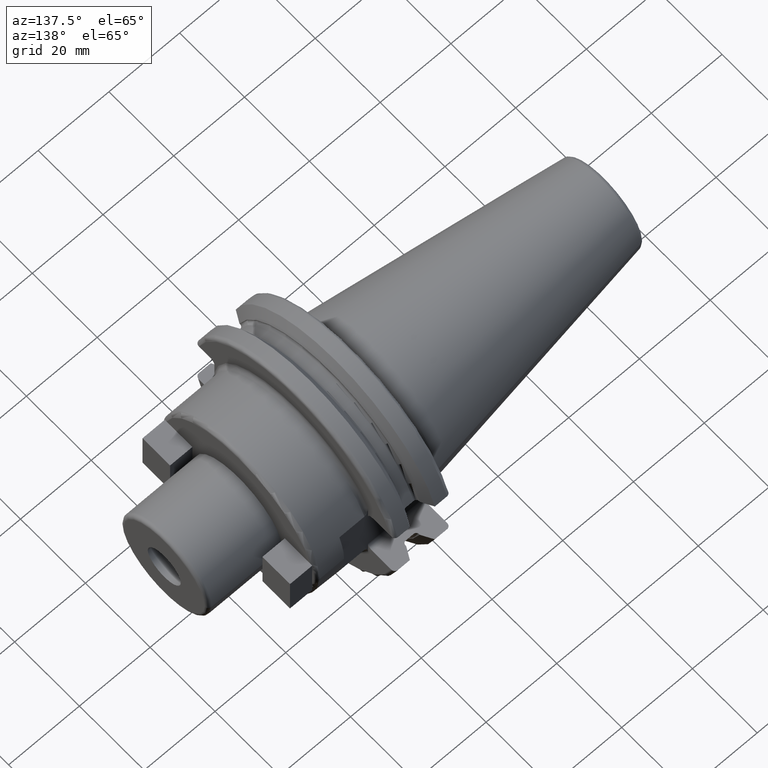
[diagram: clean part render]
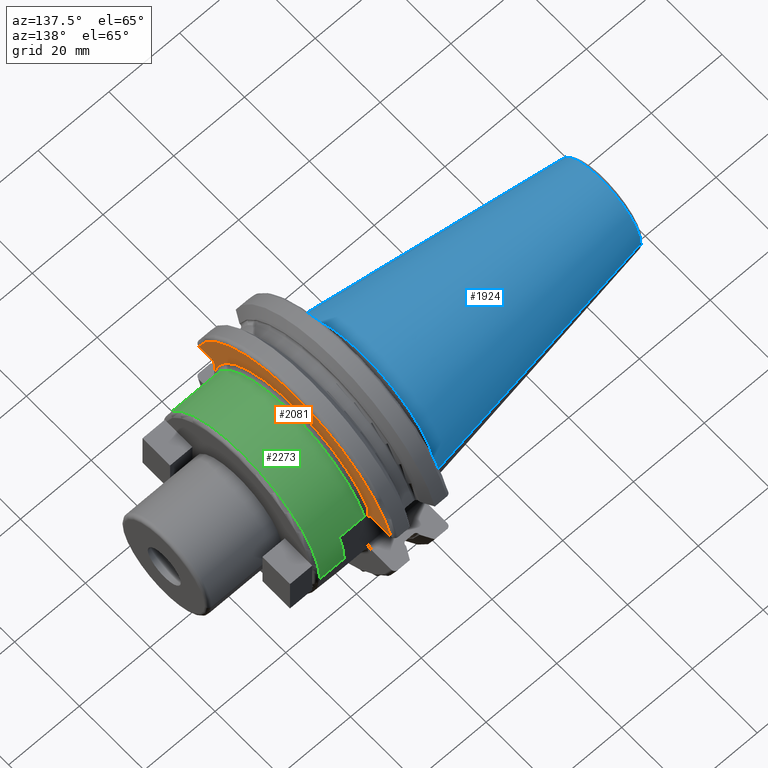
[diagram: same view with three faces highlighted in distinct colors, each labeled with its STEP entity id]
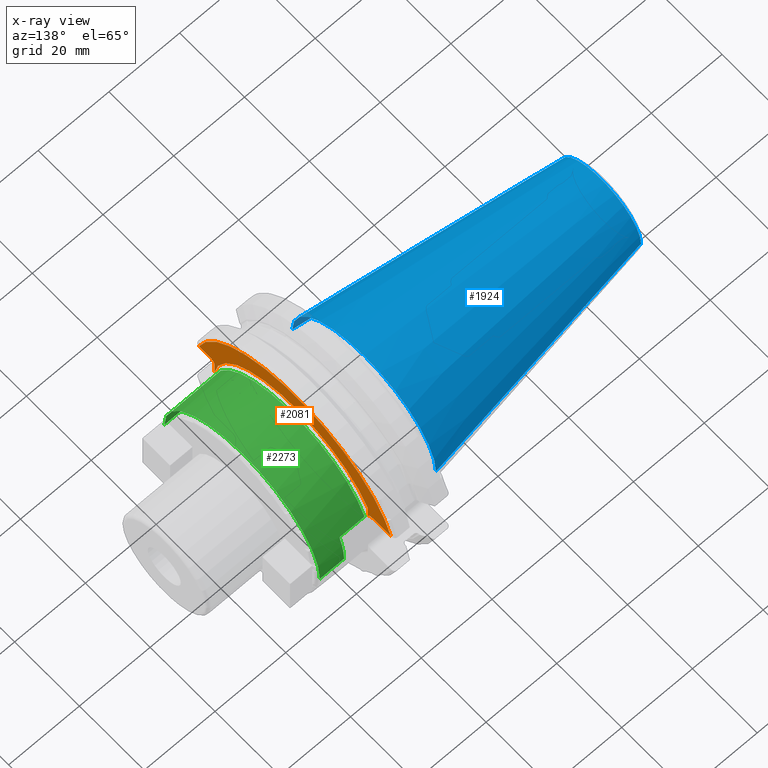
[diagram: x-ray of the same camera — body ghosted, the three highlighted faces saturated]
A machine part, auxiliary view with three faces highlighted in distinct colors.
The next image is the same camera in x-ray (body ghosted, the three faces saturated) — at least one of them is partly hidden behind the body in this view.
Their STEP definitions:

[orange] entity #2081 — the highlighted planar face has unit normal (1, 0, 0).
#134=DIRECTION('',(0.E0,0.E0,1.E0));
#135=VECTOR('',#134,4.043400761576E0);
#136=CARTESIAN_POINT('',(1.905E1,2.255E1,6.75E0));
#137=LINE('',#136,#135);
#147=CARTESIAN_POINT('',(1.905E1,2.39E1,6.75E0));
#148=DIRECTION('',(1.E0,0.E0,0.E0));
#149=DIRECTION('',(0.E0,0.E0,1.E0));
#150=AXIS2_PLACEMENT_3D('',#147,#148,#149);
#152=CARTESIAN_POINT('',(1.905E1,0.E0,0.E0));
#153=DIRECTION('',(1.E0,0.E0,0.E0));
#154=DIRECTION('',(0.E0,9.02E-1,4.317360304631E-1));
#155=AXIS2_PLACEMENT_3D('',#152,#153,#154);
#157=DIRECTION('',(0.E0,-2.203321930140E-6,9.999999999976E-1));
#158=VECTOR('',#157,4.018528073003E0);
#159=CARTESIAN_POINT('',(1.905E1,-2.484999114589E1,2.731471927007E0));
#160=LINE('',#159,#158);
#161=DIRECTION('',(0.E0,1.E0,0.E0));
#162=VECTOR('',#161,3.476950757280E0);
#163=CARTESIAN_POINT('',(1.905E1,-2.967695075728E1,8.1E0));
#164=LINE('',#163,#162);
#165=DIRECTION('',(0.E0,-1.E0,0.E0));
#166=VECTOR('',#165,5.776950757280E0);
#167=CARTESIAN_POINT('',(1.905E1,2.967695075728E1,8.1E0));
#168=LINE('',#167,#166);
#208=CARTESIAN_POINT('',(1.905E1,2.967695075728E1,8.1E0));
#219=CARTESIAN_POINT('',(1.905E1,0.E0,0.E0));
#220=DIRECTION('',(1.E0,0.E0,0.E0));
#221=DIRECTION('',(0.E0,9.647119303464E-1,2.633075985372E-1));
#222=AXIS2_PLACEMENT_3D('',#219,#220,#221);
#233=CARTESIAN_POINT('',(1.905E1,-2.967695075728E1,8.1E0));
#239=CARTESIAN_POINT('',(1.905E1,-2.62E1,6.75E0));
#240=DIRECTION('',(-1.E0,0.E0,0.E0));
#241=DIRECTION('',(0.E0,0.E0,1.E0));
#242=AXIS2_PLACEMENT_3D('',#239,#240,#241);
#1689=VERTEX_POINT('',#208);
#1690=VERTEX_POINT('',#233);
#1717=CARTESIAN_POINT('',(1.905E1,2.39E1,8.1E0));
#1719=VERTEX_POINT('',#1717);
#1729=CARTESIAN_POINT('',(1.905E1,-2.62E1,8.1E0));
#1731=VERTEX_POINT('',#1729);
#1733=CARTESIAN_POINT('',(1.905E1,-2.485E1,6.75E0));
#1735=VERTEX_POINT('',#1733);
#1772=CARTESIAN_POINT('',(1.905E1,-2.484999114589E1,2.731471927007E0));
#1773=VERTEX_POINT('',#1772);
#1854=CARTESIAN_POINT('',(1.905E1,2.255E1,6.75E0));
#1855=CARTESIAN_POINT('',(1.905E1,2.255E1,1.079340076158E1));
#1856=VERTEX_POINT('',#1854);
#1857=VERTEX_POINT('',#1855);
#2059=CARTESIAN_POINT('',(1.905E1,0.E0,0.E0));
#2060=DIRECTION('',(1.E0,0.E0,0.E0));
#2061=DIRECTION('',(0.E0,-1.E0,0.E0));
#2062=AXIS2_PLACEMENT_3D('',#2059,#2060,#2061);
#2063=PLANE('',#2062);
#2065=ORIENTED_EDGE('',*,*,#2064,.T.);
#2066=ORIENTED_EDGE('',*,*,#2030,.T.);
#2068=ORIENTED_EDGE('',*,*,#2067,.T.);
#2070=ORIENTED_EDGE('',*,*,#2069,.T.);
#2072=ORIENTED_EDGE('',*,*,#2071,.F.);
#2074=ORIENTED_EDGE('',*,*,#2073,.F.);
#2076=ORIENTED_EDGE('',*,*,#2075,.F.);
#2078=ORIENTED_EDGE('',*,*,#2077,.T.);
#2079=EDGE_LOOP('',(#2065,#2066,#2068,#2070,#2072,#2074,#2076,#2078));
#2080=FACE_OUTER_BOUND('',#2079,.F.);
#2081=ADVANCED_FACE('',(#2080),#2063,.T.);
#151=CIRCLE('',#150,1.35E0);
#156=CIRCLE('',#155,2.5E1);
#223=CIRCLE('',#222,3.07625E1);
#243=CIRCLE('',#242,1.35E0);
#2030=EDGE_CURVE('',#1856,#1857,#137,.T.);
#2064=EDGE_CURVE('',#1719,#1856,#151,.T.);
#2067=EDGE_CURVE('',#1857,#1773,#156,.T.);
#2069=EDGE_CURVE('',#1773,#1735,#160,.T.);
#2071=EDGE_CURVE('',#1731,#1735,#243,.T.);
#2073=EDGE_CURVE('',#1690,#1731,#164,.T.);
#2075=EDGE_CURVE('',#1689,#1690,#223,.T.);
#2077=EDGE_CURVE('',#1689,#1719,#168,.T.);

[blue] entity #1924 — the highlighted conical surface has half-angle 8.298 deg.
#37=CARTESIAN_POINT('',(-6.743710273571E1,0.E0,0.E0));
#38=DIRECTION('',(1.E0,0.E0,0.E0));
#39=DIRECTION('',(0.E0,1.E0,0.E0));
#40=AXIS2_PLACEMENT_3D('',#37,#38,#39);
#42=CARTESIAN_POINT('',(-4.896823332305E-1,0.E0,0.E0));
#43=DIRECTION('',(1.E0,0.E0,0.E0));
#44=DIRECTION('',(0.E0,1.E0,0.E0));
#45=AXIS2_PLACEMENT_3D('',#42,#43,#44);
#47=DIRECTION('',(-9.895312636440E-1,-1.443186691705E-1,0.E0));
#48=VECTOR('',#47,6.765568998391E1);
#49=CARTESIAN_POINT('',(-4.896823332305E-1,2.215358204157E1,0.E0));
#50=LINE('',#49,#48);
#51=DIRECTION('',(-9.895312636440E-1,1.443186691705E-1,0.E0));
#52=VECTOR('',#51,6.765568998391E1);
#53=CARTESIAN_POINT('',(-4.896823332305E-1,-2.215358204157E1,0.E0));
#54=LINE('',#53,#52);
#1532=CARTESIAN_POINT('',(-6.743710273571E1,1.238960290128E1,0.E0));
#1534=VERTEX_POINT('',#1532);
#1536=CARTESIAN_POINT('',(-6.743710273571E1,-1.238960290128E1,0.E0));
#1538=VERTEX_POINT('',#1536);
#1600=CARTESIAN_POINT('',(-4.896823332305E-1,2.215358204157E1,0.E0));
#1601=VERTEX_POINT('',#1600);
#1602=CARTESIAN_POINT('',(-4.896823332305E-1,-2.215358204157E1,0.E0));
#1603=VERTEX_POINT('',#1602);
#1910=CARTESIAN_POINT('',(-3.396339253447E1,0.E0,0.E0));
#1911=DIRECTION('',(1.E0,0.E0,0.E0));
#1912=DIRECTION('',(0.E0,-1.E0,0.E0));
#1913=AXIS2_PLACEMENT_3D('',#1910,#1911,#1912);
#1914=CONICAL_SURFACE('',#1913,1.727159247143E1,8.297826828206E0);
#1916=ORIENTED_EDGE('',*,*,#1915,.F.);
#1918=ORIENTED_EDGE('',*,*,#1917,.T.);
#1920=ORIENTED_EDGE('',*,*,#1919,.T.);
#1921=ORIENTED_EDGE('',*,*,#1903,.F.);
#1922=EDGE_LOOP('',(#1916,#1918,#1920,#1921));
#1923=FACE_OUTER_BOUND('',#1922,.F.);
#1924=ADVANCED_FACE('',(#1923),#1914,.T.);
#41=CIRCLE('',#40,1.238960290128E1);
#46=CIRCLE('',#45,2.215358204157E1);
#1903=EDGE_CURVE('',#1534,#1538,#41,.T.);
#1915=EDGE_CURVE('',#1601,#1534,#50,.T.);
#1917=EDGE_CURVE('',#1601,#1603,#46,.T.);
#1919=EDGE_CURVE('',#1603,#1538,#54,.T.);

[green] entity #2273 — the highlighted cylindrical surface (partial cylindrical patch) has radius 24 mm, axis along (1, 0, 0).
#299=DIRECTION('',(1.E0,0.E0,0.E0));
#300=VECTOR('',#299,7.1E0);
#301=CARTESIAN_POINT('',(2.005E1,2.255E1,8.215686216014E0));
#302=LINE('',#301,#300);
#303=CARTESIAN_POINT('',(2.715E1,0.E0,0.E0));
#304=DIRECTION('',(1.E0,0.E0,0.E0));
#305=DIRECTION('',(0.E0,1.E0,0.E0));
#306=AXIS2_PLACEMENT_3D('',#303,#304,#305);
#308=CARTESIAN_POINT('',(3.4E1,0.E0,0.E0));
#309=DIRECTION('',(1.E0,0.E0,0.E0));
#310=DIRECTION('',(0.E0,1.E0,0.E0));
#311=AXIS2_PLACEMENT_3D('',#308,#309,#310);
#313=CARTESIAN_POINT('',(2.005E1,0.E0,0.E0));
#314=DIRECTION('',(1.E0,0.E0,0.E0));
#315=DIRECTION('',(0.E0,9.395833333333E-1,3.423202590006E-1));
#316=AXIS2_PLACEMENT_3D('',#313,#314,#315);
#327=DIRECTION('',(-9.999999999184E-1,1.422447981668E-10,-1.277294316782E-5));
#328=VECTOR('',#327,1.395000000114E1);
#329=CARTESIAN_POINT('',(3.4E1,-2.4E1,1.722495481231E-13));
#330=LINE('',#329,#328);
#336=DIRECTION('',(-1.E0,0.E0,2.571570566808E-14));
#337=VECTOR('',#336,6.85E0);
#338=CARTESIAN_POINT('',(3.4E1,2.4E1,-1.730089110548E-13));
#339=LINE('',#338,#337);
#1766=CARTESIAN_POINT('',(3.4E1,-2.4E1,0.E0));
#1767=CARTESIAN_POINT('',(3.4E1,2.4E1,0.E0));
#1768=VERTEX_POINT('',#1766);
#1769=VERTEX_POINT('',#1767);
#1782=CARTESIAN_POINT('',(2.005E1,-2.399999999802E1,-1.781825570334E-4));
#1783=VERTEX_POINT('',#1782);
#1846=CARTESIAN_POINT('',(2.715E1,2.255E1,8.215686216014E0));
#1848=VERTEX_POINT('',#1846);
#1858=CARTESIAN_POINT('',(2.005E1,2.255E1,8.215686216014E0));
#1859=VERTEX_POINT('',#1858);
#1860=CARTESIAN_POINT('',(2.715E1,2.4E1,0.E0));
#1861=VERTEX_POINT('',#1860);
#2256=CARTESIAN_POINT('',(1.72025E1,0.E0,0.E0));
#2257=DIRECTION('',(1.E0,0.E0,0.E0));
#2258=DIRECTION('',(0.E0,-1.E0,0.E0));
#2259=AXIS2_PLACEMENT_3D('',#2256,#2257,#2258);
#2260=CYLINDRICAL_SURFACE('',#2259,2.4E1);
#2261=ORIENTED_EDGE('',*,*,#2026,.T.);
#2263=ORIENTED_EDGE('',*,*,#2262,.F.);
#2265=ORIENTED_EDGE('',*,*,#2264,.F.);
#2267=ORIENTED_EDGE('',*,*,#2266,.T.);
#2269=ORIENTED_EDGE('',*,*,#2268,.T.);
#2270=ORIENTED_EDGE('',*,*,#2249,.F.);
#2271=EDGE_LOOP('',(#2261,#2263,#2265,#2267,#2269,#2270));
#2272=FACE_OUTER_BOUND('',#2271,.F.);
#2273=ADVANCED_FACE('',(#2272),#2260,.T.);
#307=CIRCLE('',#306,2.4E1);
#312=CIRCLE('',#311,2.4E1);
#317=CIRCLE('',#316,2.4E1);
#2026=EDGE_CURVE('',#1859,#1848,#302,.T.);
#2249=EDGE_CURVE('',#1859,#1783,#317,.T.);
#2262=EDGE_CURVE('',#1861,#1848,#307,.T.);
#2264=EDGE_CURVE('',#1769,#1861,#339,.T.);
#2266=EDGE_CURVE('',#1769,#1768,#312,.T.);
#2268=EDGE_CURVE('',#1768,#1783,#330,.T.);